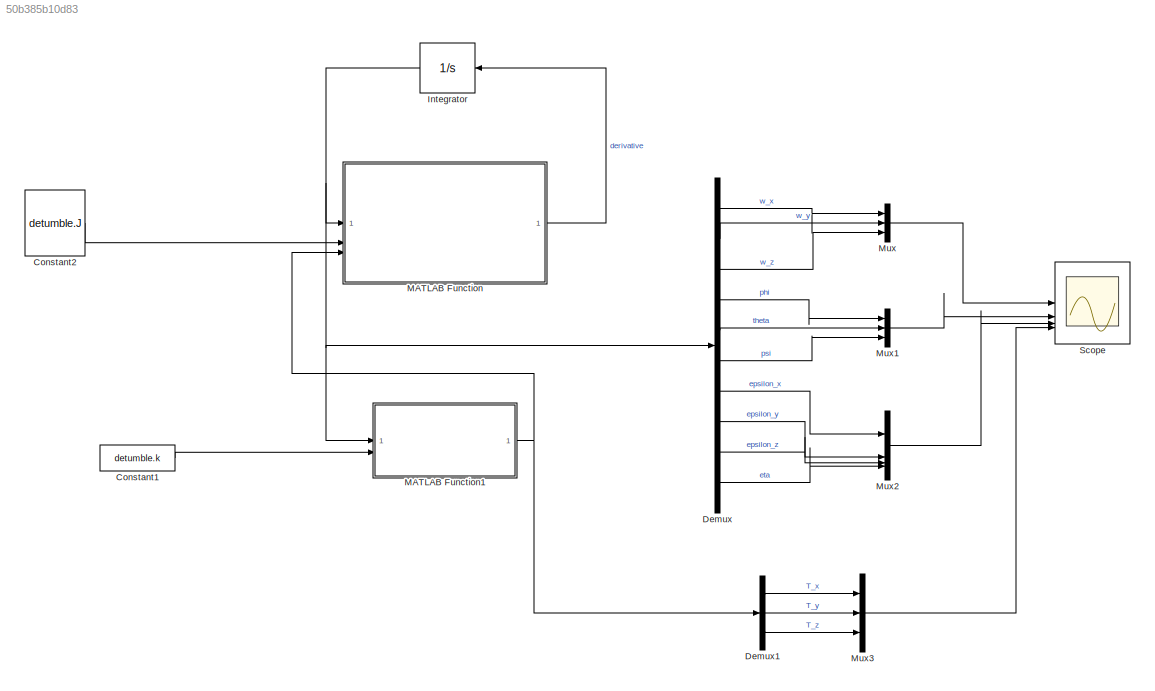
MODEL slx_50b385b10d83
KIND model
CONFIG AbsTol = auto
CONFIG EnableMultiTasking = off
CONFIG FixedStep = auto
CONFIG MaxStep = auto
CONFIG MinStep = auto
CONFIG RelTol = 1e-3
CONFIG SampleTimeConstraint = Unconstrained
CONFIG SolverName = VariableStepAuto
CONFIG StartTime = 0.0
CONFIG StopTime = detumble.deltaT
BLOCK [Constant] Constant1
  Value = detumble.k
BLOCK [Constant] Constant2
  Value = detumble.J
BLOCK [Demux] Demux
  Outputs = 10
BLOCK [Demux] Demux1
  Outputs = 3
BLOCK [Integrator] Integrator
  InitialCondition = detumble.initialState
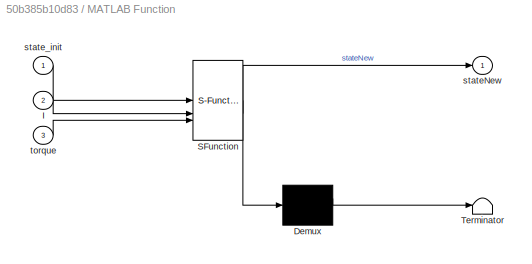
BLOCK [SubSystem] MATLAB Function
  ErrorFcn = Stateflow.Translate.translate
  LibrarySourceBlock = simulink/User-Defined\nFunctions/MATLAB Function
  PermitHierarchicalResolution = ExplicitOnly
  SFBlockType = MATLAB Function
  TreatAsAtomicUnit = on
BLOCK [Demux] MATLAB Function/ Demux 
  Outputs = 1
BLOCK [S-Function] MATLAB Function/ SFunction 
  EnableBusSupport = on
  FunctionName = sf_sfun
  PortCounts = [3 2]
  SFcnIsStateOwnerBlock = off
  SFunctionDeploymentMode = off
  Tag = Stateflow S-Function 2
BLOCK [Terminator] MATLAB Function/ Terminator 
BLOCK [Inport] MATLAB Function/I
  Port = 2
BLOCK [Outport] MATLAB Function/stateNew
BLOCK [Inport] MATLAB Function/state_init
BLOCK [Inport] MATLAB Function/torque
  Port = 3
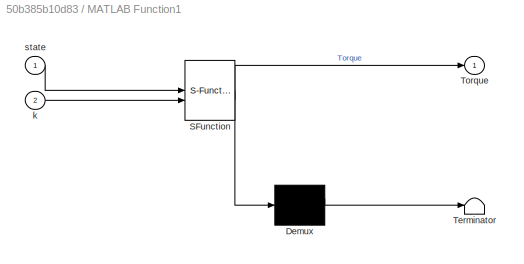
BLOCK [SubSystem] MATLAB Function1
  ErrorFcn = Stateflow.Translate.translate
  LibrarySourceBlock = simulink/User-Defined\nFunctions/MATLAB Function
  PermitHierarchicalResolution = ExplicitOnly
  SFBlockType = MATLAB Function
  TreatAsAtomicUnit = on
BLOCK [Demux] MATLAB Function1/ Demux 
  Outputs = 1
BLOCK [S-Function] MATLAB Function1/ SFunction 
  EnableBusSupport = on
  FunctionName = sf_sfun
  PortCounts = [2 2]
  SFcnIsStateOwnerBlock = off
  SFunctionDeploymentMode = off
  Tag = Stateflow S-Function 1
BLOCK [Terminator] MATLAB Function1/ Terminator 
BLOCK [Outport] MATLAB Function1/Torque
BLOCK [Inport] MATLAB Function1/k
  Port = 2
BLOCK [Inport] MATLAB Function1/state
BLOCK [Mux] Mux
  DisplayOption = bar
  Inputs = 3
BLOCK [Mux] Mux1
  DisplayOption = bar
  Inputs = 3
BLOCK [Mux] Mux2
  DisplayOption = bar
BLOCK [Mux] Mux3
  DisplayOption = bar
  Inputs = 3
BLOCK [Scope] Scope
  Floating = off
  NumInputPorts = 4
  ScopeSpecificationString = Simulink.scopes.TimeScopeBlockCfg('CurrentConfiguration', extmgr.ConfigurationSet(extmgr.Configuration('Core','General UI',true),extmgr.Configuration('Core','Source UI',true),extmgr.Configuration('Sources','WiredSimulink',true,'DataLogging',true,'DataLoggingSaveFormat','StructureWithTime'),extmgr.Configuration('Visuals','Time Domain',true,'SerializedDisplays',{struct('MinYLimReal','-0.08125','MaxY...<+3518ch>
LINE Constant1:1 -> MATLAB Function1:2
LINE Constant2:1 -> MATLAB Function:2
LINE Demux1:1 -> Mux3:1
LINE Demux1:2 -> Mux3:2
LINE Demux1:3 -> Mux3:3
LINE Demux:1 -> Mux:1
LINE Demux:10 -> Mux2:4
LINE Demux:2 -> Mux:2
LINE Demux:3 -> Mux:3
LINE Demux:4 -> Mux1:1
LINE Demux:5 -> Mux1:2
LINE Demux:6 -> Mux1:3
LINE Demux:7 -> Mux2:1
LINE Demux:8 -> Mux2:2
LINE Demux:9 -> Mux2:3
NET Integrator:1 -> Demux:1, MATLAB Function1:1, MATLAB Function:1
NET MATLAB Function1:1 -> Demux1:1, MATLAB Function:3
LINE MATLAB Function:1 -> Integrator:1
LINE Mux1:1 -> Scope:2
LINE Mux2:1 -> Scope:3
LINE Mux3:1 -> Scope:4
LINE Mux:1 -> Scope:1
note: NET lines group one-source signal fan-out (src -> all destinations, sorted); 1:1 wires keep LINE
CHART MATLAB Function1 states=1 transitions=1
  STATE_LABEL 'eML_blk_kernel()'
  STATE_LABEL 'SCRIPT:\nfunction Torque  = controlLaw(state,k)\n\nw = state(1:3);\nTorque = -k*w;'
CHART MATLAB Function states=1 transitions=1
  STATE_LABEL 'eML_blk_kernel()'
  STATE_LABEL 'SCRIPT:\nfunction stateNew  = motionSim(state_init,I,torque)\n% Inputs\n    % time\n    % state init = [wx,wy,wz,phi,theta,psi,epsilonx,epsilony,epsilonz,eta]\n    % I = inertia matrix\n    % torque\n% Ouput\n    % stateNew = derivative of stateInit\n% *All angles in RADIANS*\n\n% Angular Velocity\nw_init = state_init(1:3);    \nwx = w_init(1);\nwy = w_init(2);\nwz = w_init(3);\nwcross = [0, -wz, wy; wz, 0, -wx; ...<+786ch>'
CHART  states=0 transitions=0
CHART  states=0 transitions=0
